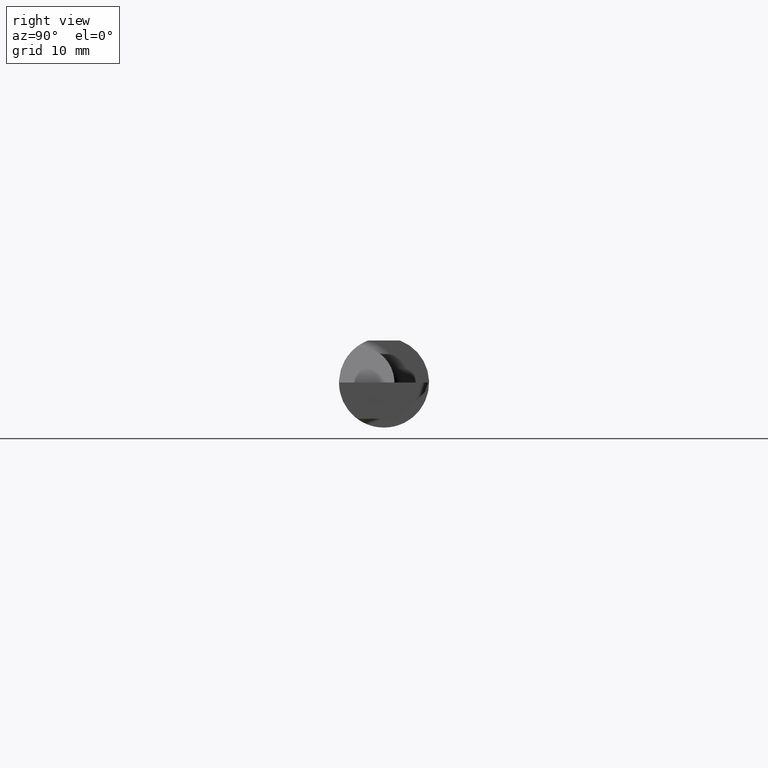
[diagram: clean part render]
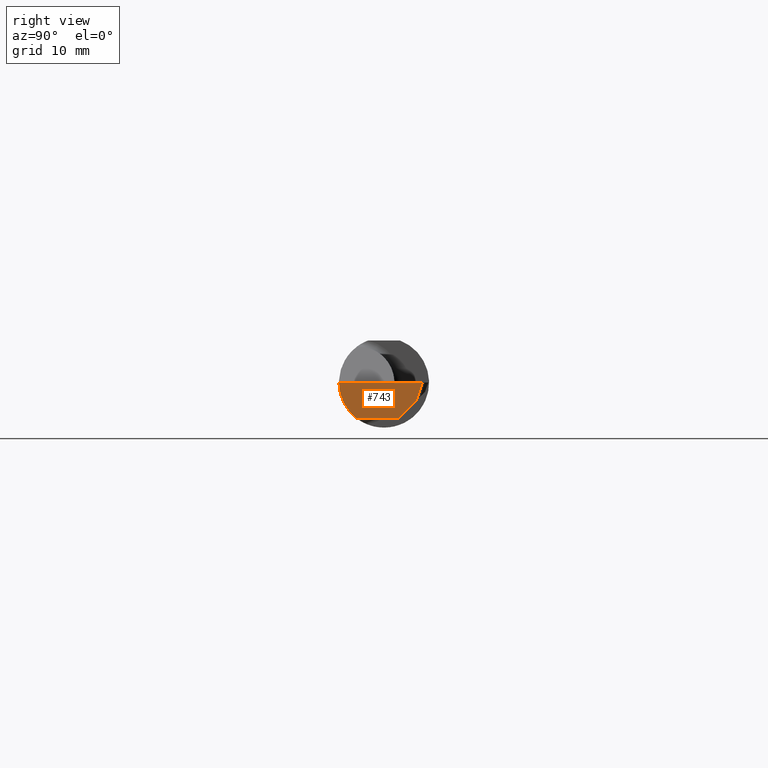
[diagram: same view with one face highlighted and labeled with its STEP entity id]
A machine part, right view. The second image highlights one B-rep face of the part: STEP entity #743.
In plain terms, the highlighted planar face has unit normal (-0.9992, 0.0174, 0.0349).
Its self-contained STEP definition (entity closure, byte-faithful):
#10 = LINE ( 'NONE', #137, #118 ) ;
#12 = EDGE_LOOP ( 'NONE', ( #27, #256, #341, #68, #69, #653 ) ) ;
#23 = EDGE_CURVE ( 'NONE', #379, #582, #52, .T. ) ;
#27 = ORIENTED_EDGE ( 'NONE', *, *, #708, .F. ) ;
#38 = CARTESIAN_POINT ( 'NONE',  ( 2.492005481760536156, -0.1336908980339254205, -0.09488266708345013956 ) ) ;
#49 = VERTEX_POINT ( 'NONE', #793 ) ;
#50 = DIRECTION ( 'NONE',  ( 0.03490480639812536257, 0.000000000000000000, 0.9993906415863165194 ) ) ;
#52 = LINE ( 'NONE', #796, #228 ) ;
#63 = PLANE ( 'NONE',  #546 ) ;
#67 =( BOUNDED_CURVE ( )  B_SPLINE_CURVE ( 3, ( #377, #631, #321, #325 ),
 .UNSPECIFIED., .F., .F. ) 
 B_SPLINE_CURVE_WITH_KNOTS ( ( 4, 4 ),
 ( 0.4273896528388657634, 0.4634648172053296156 ),
 .UNSPECIFIED. ) 
 CURVE ( )  GEOMETRIC_REPRESENTATION_ITEM ( )  RATIONAL_B_SPLINE_CURVE ( ( 1.000000000000000000, 0.9998915514833921492, 0.9998915514833921492, 1.000000000000000000 ) ) 
 REPRESENTATION_ITEM ( '' )  );
#68 = ORIENTED_EDGE ( 'NONE', *, *, #432, .F. ) ;
#69 = ORIENTED_EDGE ( 'NONE', *, *, #724, .T. ) ;
#81 = VECTOR ( 'NONE', #454, 39.37007874015748143 ) ;
#118 = VECTOR ( 'NONE', #519, 39.37007874015748854 ) ;
#121 = FACE_OUTER_BOUND ( 'NONE', #12, .T. ) ;
#126 = VERTEX_POINT ( 'NONE', #515 ) ;
#137 = CARTESIAN_POINT ( 'NONE',  ( 2.491792233050964533, -0.08564570651617034458, -0.1250000000000000278 ) ) ;
#148 = CARTESIAN_POINT ( 'NONE',  ( 2.499997065210553426, 0.1342945264389270033, 0.000000000000000000 ) ) ;
#150 = EDGE_CURVE ( 'NONE', #226, #126, #10, .T. ) ;
#172 = VECTOR ( 'NONE', #196, 39.37007874015748854 ) ;
#174 = CARTESIAN_POINT ( 'NONE',  ( 2.499981158297549744, 0.1333832200032812054, 0.000000000000000000 ) ) ;
#196 = DIRECTION ( 'NONE',  ( -0.03701368837992422695, -0.7066222423871549863, -0.7066222423871629799 ) ) ;
#226 = VERTEX_POINT ( 'NONE', #512 ) ;
#228 = VECTOR ( 'NONE', #304, 39.37007874015748143 ) ;
#256 = ORIENTED_EDGE ( 'NONE', *, *, #23, .T. ) ;
#279 = EDGE_CURVE ( 'NONE', #582, #513, #396, .T. ) ;
#304 = DIRECTION ( 'NONE',  ( 0.03867711768363010783, 0.3253245514560481610, 0.9448111011136606230 ) ) ;
#321 = CARTESIAN_POINT ( 'NONE',  ( 2.491705699447075428, -0.09060321336276823401, -0.1250000000000000833 ) ) ;
#325 = CARTESIAN_POINT ( 'NONE',  ( 2.491731938133923130, -0.08909999999999985987, -0.1250000000000000278 ) ) ;
#341 = ORIENTED_EDGE ( 'NONE', *, *, #279, .T. ) ;
#346 = CARTESIAN_POINT ( 'NONE',  ( 2.494928209896765114, -0.1560999999999999888, 0.000000000000000000 ) ) ;
#372 = CARTESIAN_POINT ( 'NONE',  ( 2.499997065210553426, 0.1342945264389270033, 0.000000000000000000 ) ) ;
#377 = CARTESIAN_POINT ( 'NONE',  ( 2.491656083944432165, -0.09360841750841740472, -0.1249186702281520484 ) ) ;
#379 = VERTEX_POINT ( 'NONE', #571 ) ;
#396 = LINE ( 'NONE', #148, #81 ) ;
#419 = CARTESIAN_POINT ( 'NONE',  ( 2.494928209896765114, -0.1560999999999999888, 0.000000000000000000 ) ) ;
#432 = EDGE_CURVE ( 'NONE', #49, #513, #787, .T. ) ;
#447 = CARTESIAN_POINT ( 'NONE',  ( 2.495646440191340965, 0.07786239281539021617, -0.09636345117263085680 ) ) ;
#454 = DIRECTION ( 'NONE',  ( -0.01745240643727612520, -0.9998476951563912696, 0.000000000000000000 ) ) ;
#481 = CARTESIAN_POINT ( 'NONE',  ( 2.491656083944432165, -0.09360841750841740472, -0.1249186702281520484 ) ) ;
#484 = DIRECTION ( 'NONE',  ( -0.9992386149554827179, 0.01744177490282277851, 0.03489949670250104552 ) ) ;
#512 = CARTESIAN_POINT ( 'NONE',  ( 2.494146424721983557, 0.04922584398802135747, -0.1250000000000000278 ) ) ;
#513 = VERTEX_POINT ( 'NONE', #346 ) ;
#515 = CARTESIAN_POINT ( 'NONE',  ( 2.491731938133923130, -0.08909999999999985987, -0.1250000000000000278 ) ) ;
#519 = DIRECTION ( 'NONE',  ( -0.01745240643727612520, -0.9998476951563912696, 0.000000000000000000 ) ) ;
#546 = AXIS2_PLACEMENT_3D ( 'NONE', #372, #484, #50 ) ;
#571 = CARTESIAN_POINT ( 'NONE',  ( 2.497431183685123735, 0.1119346375676058408, -0.06229120642041485051 ) ) ;
#576 = LINE ( 'NONE', #447, #172 ) ;
#582 = VERTEX_POINT ( 'NONE', #174 ) ;
#601 = CARTESIAN_POINT ( 'NONE',  ( 2.493178846255211134, -0.1561000000000000165, -0.05008759057876781273 ) ) ;
#631 = CARTESIAN_POINT ( 'NONE',  ( 2.491680411974855680, -0.09210618219364763437, -0.1249728871357008164 ) ) ;
#653 = ORIENTED_EDGE ( 'NONE', *, *, #150, .F. ) ;
#708 = EDGE_CURVE ( 'NONE', #379, #226, #576, .T. ) ;
#724 = EDGE_CURVE ( 'NONE', #49, #126, #67, .T. ) ;
#743 = ADVANCED_FACE ( 'NONE', ( #121 ), #63, .F. ) ;
#787 =( BOUNDED_CURVE ( )  B_SPLINE_CURVE ( 3, ( #481, #38, #601, #419 ),
 .UNSPECIFIED., .F., .F. ) 
 B_SPLINE_CURVE_WITH_KNOTS ( ( 4, 4 ),
 ( 0.1796232990704038912, 1.107331509589568608 ),
 .UNSPECIFIED. ) 
 CURVE ( )  GEOMETRIC_REPRESENTATION_ITEM ( )  RATIONAL_B_SPLINE_CURVE ( ( 1.000000000000000000, 0.9295565493311498395, 0.9295565493311498395, 1.000000000000000000 ) ) 
 REPRESENTATION_ITEM ( '' )  );
#793 = CARTESIAN_POINT ( 'NONE',  ( 2.491656083944432165, -0.09360841750841740472, -0.1249186702281520484 ) ) ;
#796 = CARTESIAN_POINT ( 'NONE',  ( 2.499992648711913734, 0.1334798692399048747, 0.0002806897643215264617 ) ) ;